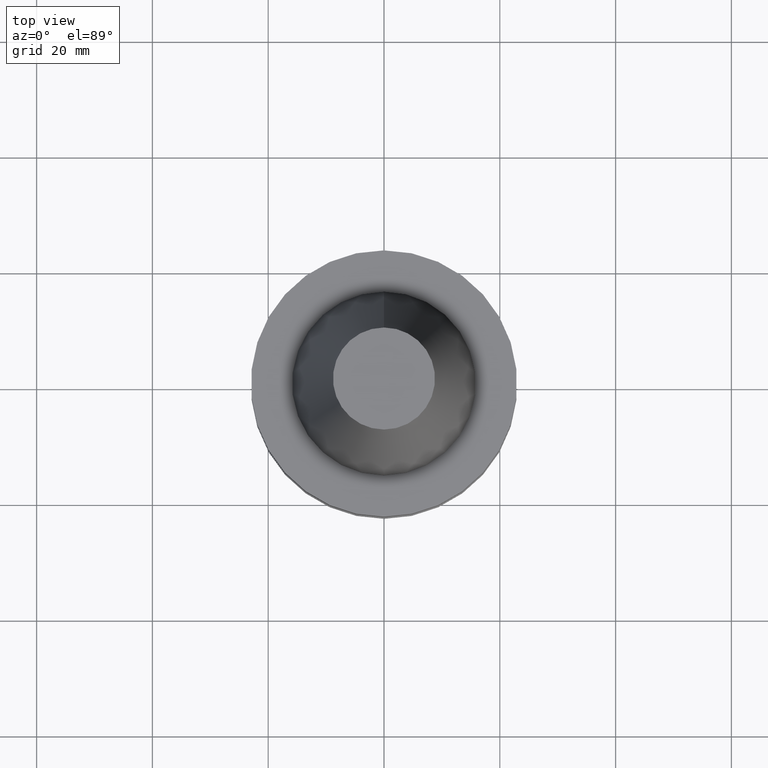
[diagram: clean part render]
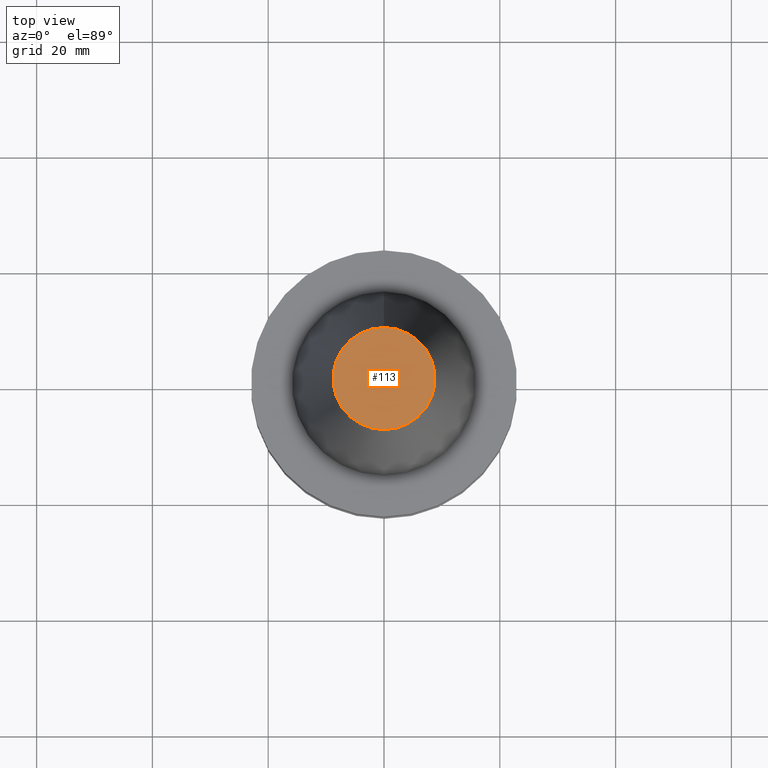
[diagram: same view with one face highlighted and labeled with its STEP entity id]
A machine part, top view. The second image highlights one B-rep face of the part: STEP entity #113.
In plain terms, the highlighted planar face has unit normal (-0, -0, 1).
Its self-contained STEP definition (entity closure, byte-faithful):
#113=ADVANCED_FACE('Unnamed[1]',(#257),#258,.T.);
#126=EDGE_CURVE('Unnamed[1]',#278,#278,#279,.T.);
#257=FACE_OUTER_BOUND('',#445,.T.);
#258=PLANE('',#446);
#278=VERTEX_POINT('',#471);
#279=CIRCLE('',#472,8.81650000198669);
#445=EDGE_LOOP('',(#639));
#446=AXIS2_PLACEMENT_3D('',#640,#641,#642);
#471=CARTESIAN_POINT('',(-2.96364525393659E-015,8.81650000198669,48.4));
#472=AXIS2_PLACEMENT_3D('',#664,#665,#666);
#639=ORIENTED_EDGE('',*,*,#126,.F.);
#640=CARTESIAN_POINT('',(-2.96364525393659E-015,4.40825000099334,48.4));
#641=DIRECTION('',(-6.12323399573677E-017,-1.22464679914735E-016,1.0));
#642=DIRECTION('',(1.23259516440783E-032,-1.0,-1.22464679914735E-016));
#664=CARTESIAN_POINT('',(-2.96364525393659E-015,-5.92729050787319E-015,48.4));
#665=DIRECTION('',(6.12323399573677E-017,1.22464679914735E-016,-1.0));
#666=DIRECTION('',(-1.23259516440783E-032,1.0,1.22464679914735E-016));